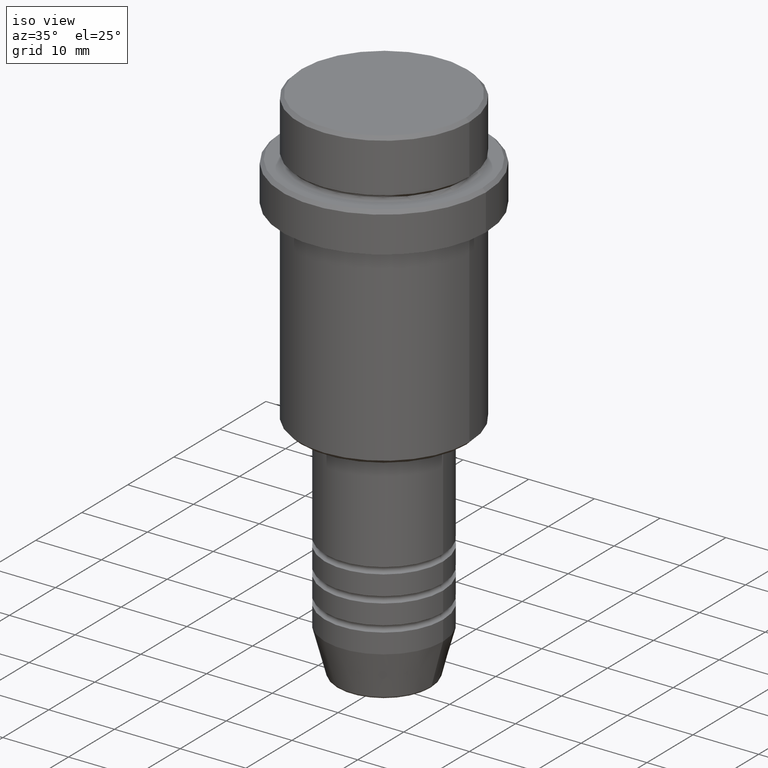
[diagram: clean part render]
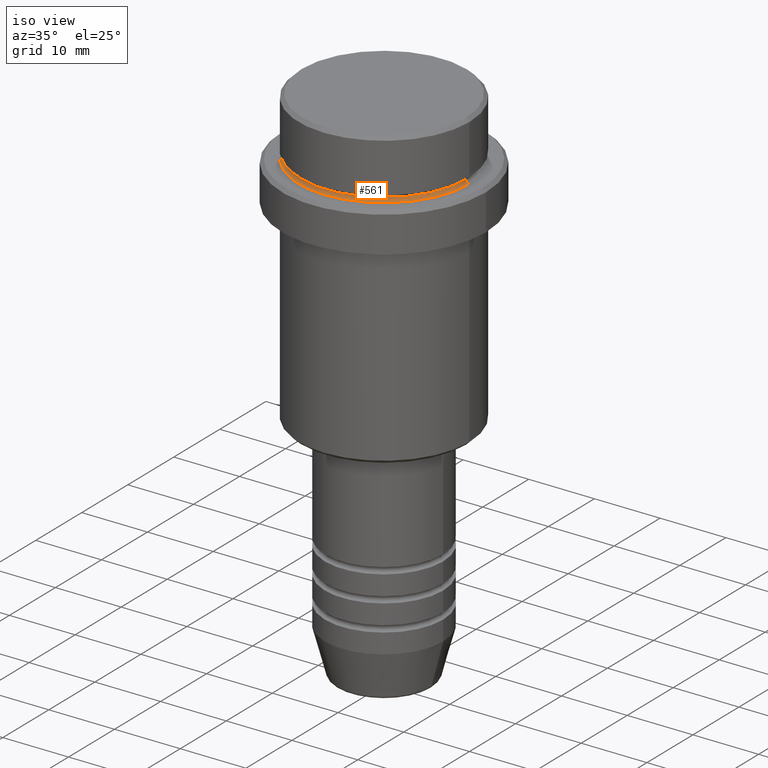
[diagram: same view with one face highlighted and labeled with its STEP entity id]
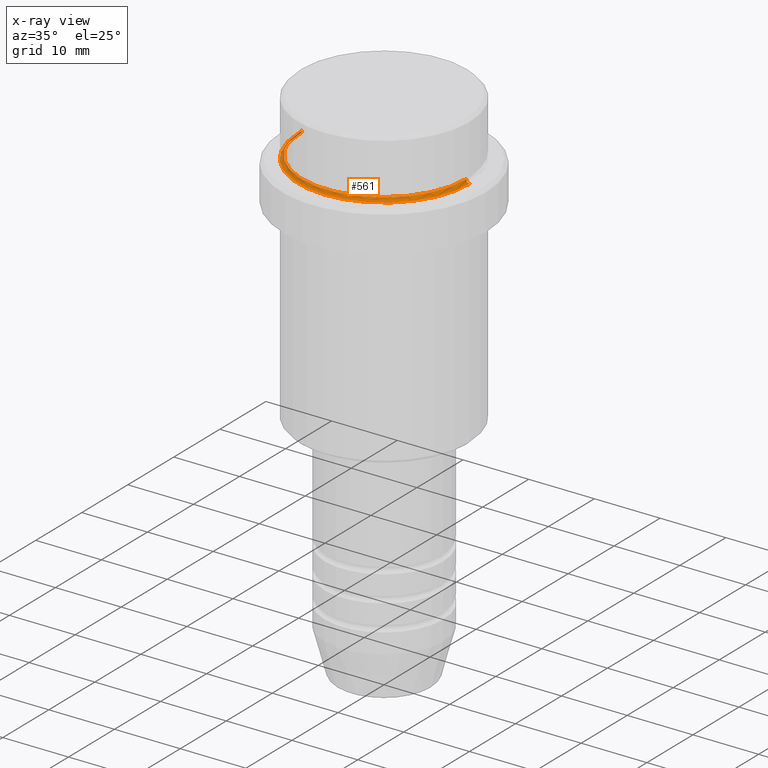
[diagram: x-ray of the same camera — body ghosted, the highlighted face saturated]
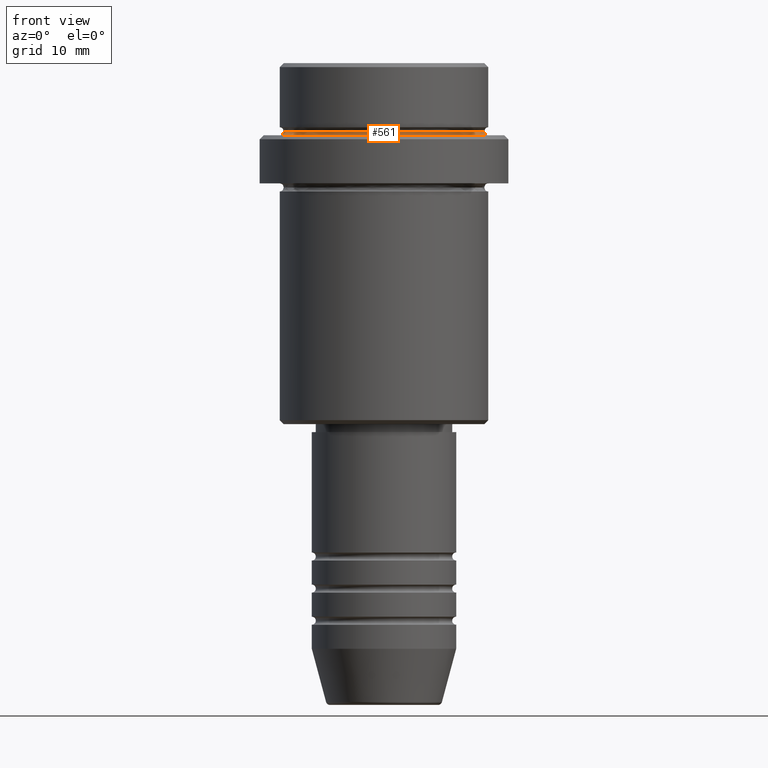
[diagram: same view with one face highlighted and labeled with its STEP entity id]
A machine part, iso view. The second image highlights one B-rep face of the part: STEP entity #561.
The next image is the same camera in x-ray: the body ghosted, the highlighted face saturated — about 2% of this face is hidden behind the body in this view.
A second angle (front view) of the same face is appended — the face is thin or edge-on in the first view.
In plain terms, the highlighted toroidal blend (fillet) surface has major radius 13 mm and minor (blend) radius 0.5 mm.
Its self-contained STEP definition (entity closure, byte-faithful):
#76 = ORIENTED_EDGE ( 'NONE', *, *, #897, .F. ) ;
#119 = CIRCLE ( 'NONE', #174, 12.99999999999999467 ) ;
#123 = CARTESIAN_POINT ( 'NONE',  ( 0.000000000000000000, 0.000000000000000000, -9.000000000000000000 ) ) ;
#138 = CARTESIAN_POINT ( 'NONE',  ( 12.99999999999999467, 0.000000000000000000, -9.000000000000000000 ) ) ;
#174 = AXIS2_PLACEMENT_3D ( 'NONE', #123, #1191, #1324 ) ;
#198 = EDGE_CURVE ( 'NONE', #226, #1304, #571, .T. ) ;
#226 = VERTEX_POINT ( 'NONE', #1084 ) ;
#286 = AXIS2_PLACEMENT_3D ( 'NONE', #1287, #753, #526 ) ;
#316 = ORIENTED_EDGE ( 'NONE', *, *, #834, .F. ) ;
#323 = ORIENTED_EDGE ( 'NONE', *, *, #650, .T. ) ;
#365 = TOROIDAL_SURFACE ( 'NONE', #1071, 12.99999999999999467, 0.5000000000000000000 ) ;
#401 = CIRCLE ( 'NONE', #1393, 12.49999999999999289 ) ;
#418 = DIRECTION ( 'NONE',  ( -0.000000000000000000, -0.000000000000000000, 1.000000000000000000 ) ) ;
#526 = DIRECTION ( 'NONE',  ( -1.000000000000000000, 1.224646799147353454E-16, 0.000000000000000000 ) ) ;
#561 = ADVANCED_FACE ( 'NONE', ( #1398 ), #365, .F. ) ;
#571 = CIRCLE ( 'NONE', #1274, 0.5000000000000004441 ) ;
#607 = CIRCLE ( 'NONE', #286, 0.5000000000000004441 ) ;
#624 = ORIENTED_EDGE ( 'NONE', *, *, #198, .F. ) ;
#650 = EDGE_CURVE ( 'NONE', #1107, #1086, #607, .T. ) ;
#655 = DIRECTION ( 'NONE',  ( 0.000000000000000000, -1.000000000000000000, 0.000000000000000000 ) ) ;
#656 = EDGE_LOOP ( 'NONE', ( #76, #323, #316, #624 ) ) ;
#753 = DIRECTION ( 'NONE',  ( 1.224646799147353207E-16, 1.000000000000000000, 0.000000000000000000 ) ) ;
#834 = EDGE_CURVE ( 'NONE', #1304, #1086, #119, .T. ) ;
#859 = CARTESIAN_POINT ( 'NONE',  ( -12.99999999999999467, 1.592040838891558504E-15, -9.000000000000000000 ) ) ;
#897 = EDGE_CURVE ( 'NONE', #1107, #226, #401, .T. ) ;
#992 = DIRECTION ( 'NONE',  ( 0.000000000000000000, 0.000000000000000000, -1.000000000000000000 ) ) ;
#1057 = DIRECTION ( 'NONE',  ( -0.000000000000000000, -0.000000000000000000, 1.000000000000000000 ) ) ;
#1071 = AXIS2_PLACEMENT_3D ( 'NONE', #1190, #1057, #1155 ) ;
#1082 = DIRECTION ( 'NONE',  ( 1.000000000000000000, 0.000000000000000000, 0.000000000000000000 ) ) ;
#1084 = CARTESIAN_POINT ( 'NONE',  ( 12.49999999999999289, 0.000000000000000000, -8.499999999999998224 ) ) ;
#1086 = VERTEX_POINT ( 'NONE', #859 ) ;
#1107 = VERTEX_POINT ( 'NONE', #1271 ) ;
#1155 = DIRECTION ( 'NONE',  ( 1.000000000000000000, 0.000000000000000000, 0.000000000000000000 ) ) ;
#1190 = CARTESIAN_POINT ( 'NONE',  ( 0.000000000000000000, 0.000000000000000000, -8.499999999999998224 ) ) ;
#1191 = DIRECTION ( 'NONE',  ( 0.000000000000000000, 0.000000000000000000, -1.000000000000000000 ) ) ;
#1210 = CARTESIAN_POINT ( 'NONE',  ( 12.99999999999999467, 0.000000000000000000, -8.499999999999998224 ) ) ;
#1271 = CARTESIAN_POINT ( 'NONE',  ( -12.49999999999999289, 1.561424668912874519E-15, -8.499999999999998224 ) ) ;
#1274 = AXIS2_PLACEMENT_3D ( 'NONE', #1210, #655, #992 ) ;
#1287 = CARTESIAN_POINT ( 'NONE',  ( -12.99999999999999467, 1.592040838891558504E-15, -8.499999999999998224 ) ) ;
#1304 = VERTEX_POINT ( 'NONE', #138 ) ;
#1316 = CARTESIAN_POINT ( 'NONE',  ( 0.000000000000000000, 0.000000000000000000, -8.499999999999998224 ) ) ;
#1324 = DIRECTION ( 'NONE',  ( 1.000000000000000000, 0.000000000000000000, 0.000000000000000000 ) ) ;
#1393 = AXIS2_PLACEMENT_3D ( 'NONE', #1316, #418, #1082 ) ;
#1398 = FACE_OUTER_BOUND ( 'NONE', #656, .T. ) ;